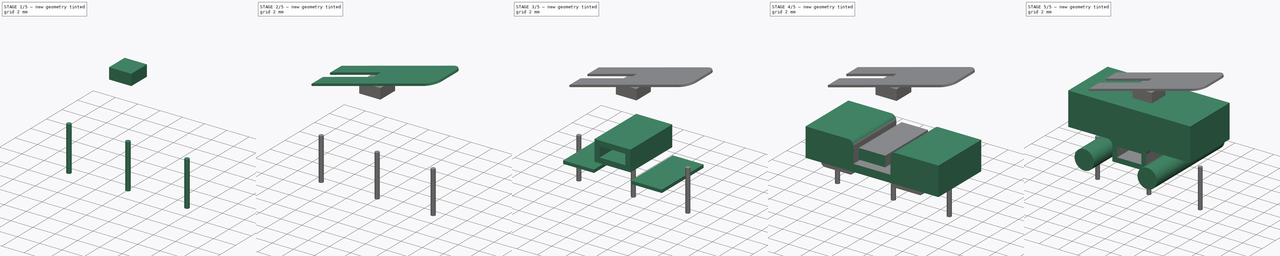
[diagram: build sequence overview — one tinted view per stage of 5, left to right]
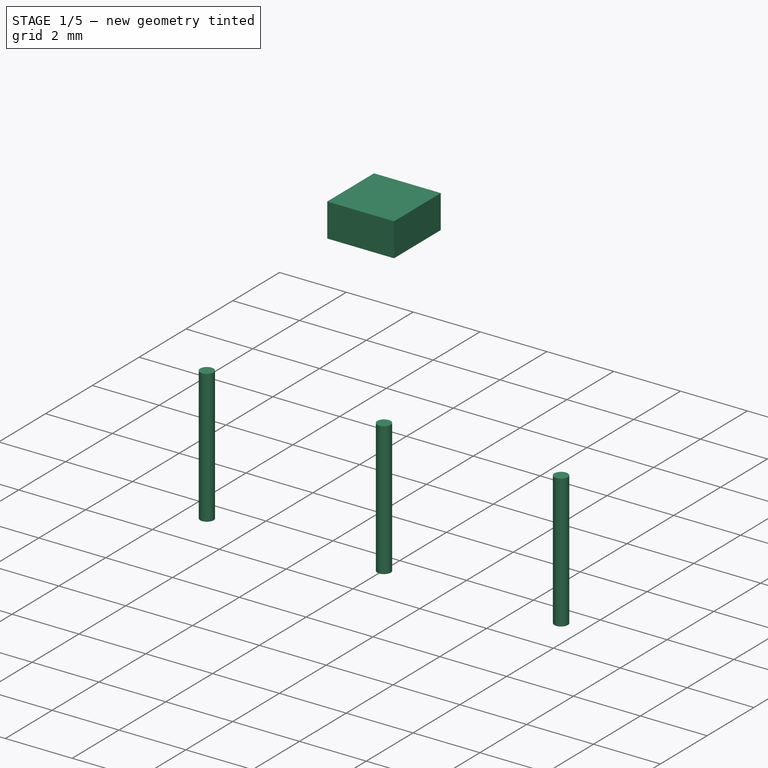
[diagram: stage 1 of 5 — iso view after this stage's code; geometry added in this stage tinted green]
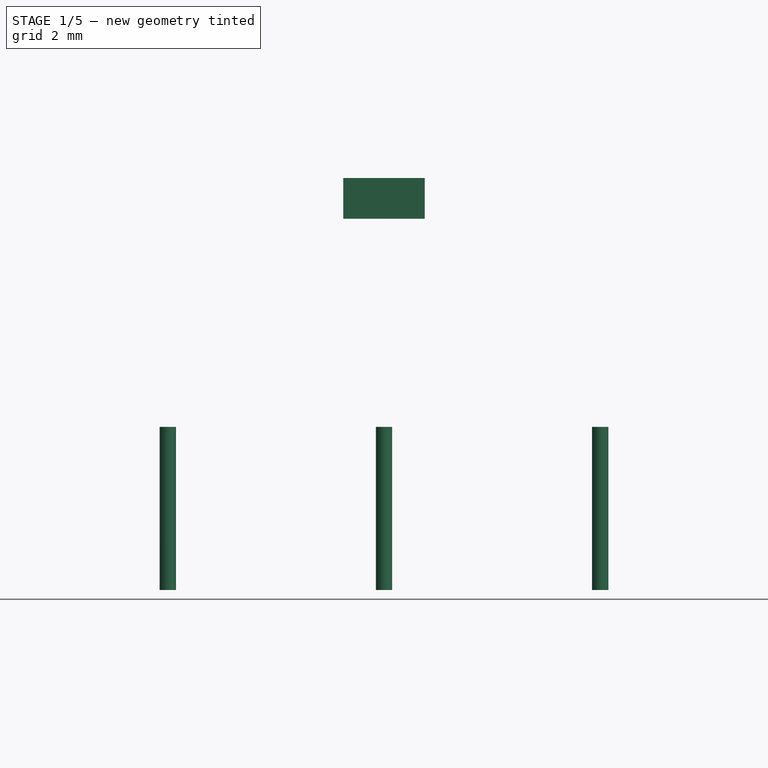
[diagram: stage 1 of 5 — front view after this stage's code; geometry added in this stage tinted green]
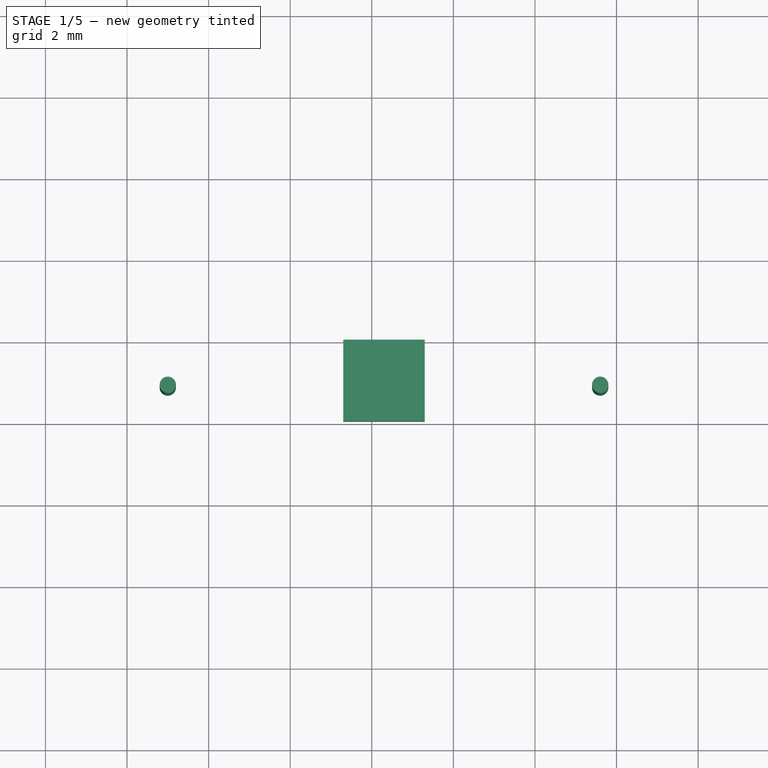
[diagram: stage 1 of 5 — top view after this stage's code; geometry added in this stage tinted green]
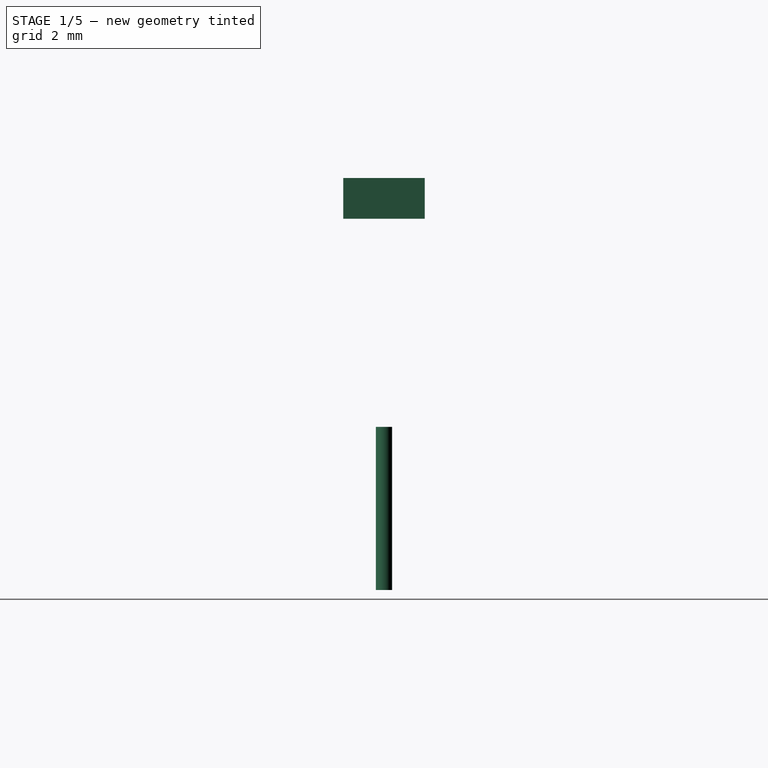
[diagram: stage 1 of 5 — right view after this stage's code; geometry added in this stage tinted green]
FCSTD DOCUMENT  (FreeCAD 0.14R3702 (Git))
Label: endstop12x6x5
License: CC-BY 3.0
LicenseURL: http://creativecommons.org/licenses/by/3.0/
objects: Part::Box×8, Part::Cylinder×5, Part::Cut×3, Part::Fillet×3, Part::Feature×2, Part::MultiFuse×1, Part::Chamfer×1, Sketcher::SketchObject×1, PartDesign::Pocket×1, App::DocumentObjectGroup×1
note: 26 computed .brp shape members not serialized (recipe doc carries the construction recipe); baked Part::Feature solids carry a one-line shape summary decoded from their .brp

FEATURE [Part::Box] Box007  label="Cubo007"
  Height = 1
  Length = 2
  Placement = pos=(5.3,1.9,6.1) rot=(0,0,1;0rad)
  Width = 2
FEATURE [Part::Cylinder] Cylinder002  label="GND"
  Angle = 360
  Height = 4
  Placement = pos=(1,2.9,-3) rot=(0,0,1;0rad)
  Radius = 0.2
FEATURE [Part::Cylinder] Cylinder003  label="NC"
  Angle = 360
  Height = 4
  Placement = pos=(6.3,2.9,-3) rot=(0,0,1;0rad)
  Radius = 0.2
FEATURE [Part::Cylinder] Cylinder004  label="NO"
  Angle = 360
  Height = 4
  Placement = pos=(11.6,2.9,-3) rot=(0,0,1;0rad)
  Radius = 0.2
FEATURE [App::DocumentObjectGroup] Grupo  label="PiezaTerminada"
  Group = -> [Fillet001,Cut002,Cut003,Box007,Cylinder002,Cylinder003,Cylinder004]
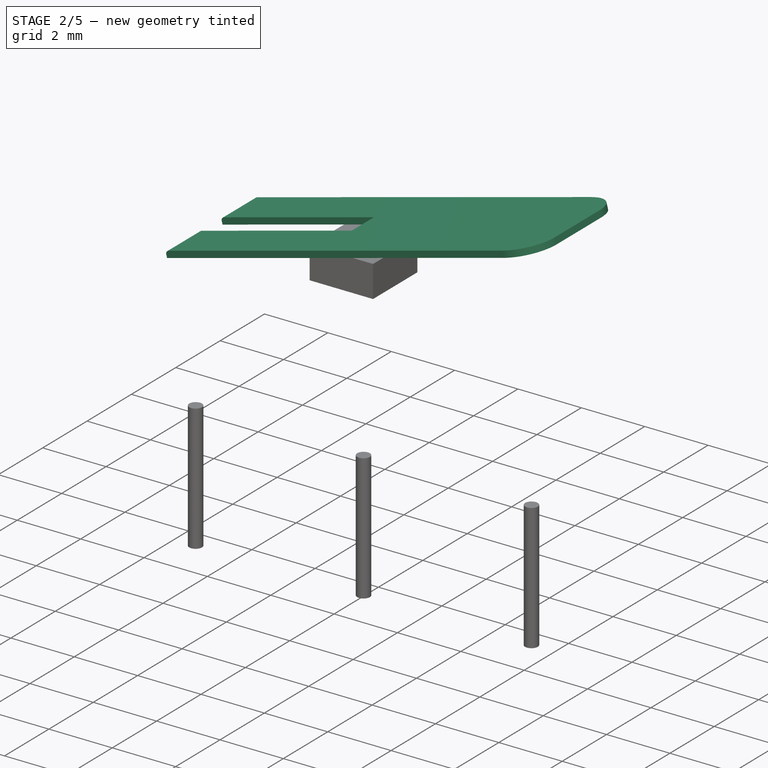
[diagram: stage 2 of 5 — iso view after this stage's code; geometry added in this stage tinted green]
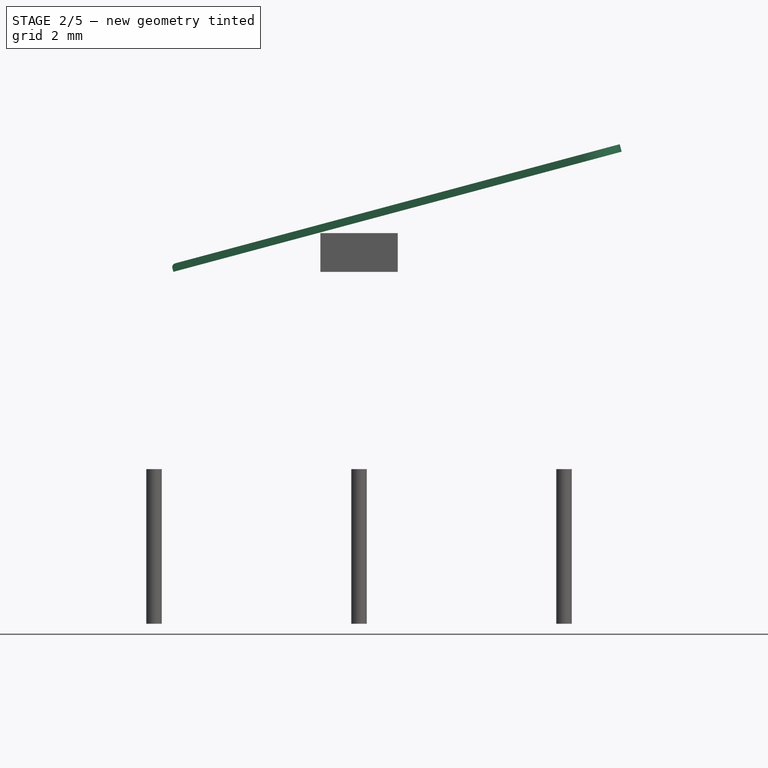
[diagram: stage 2 of 5 — front view after this stage's code; geometry added in this stage tinted green]
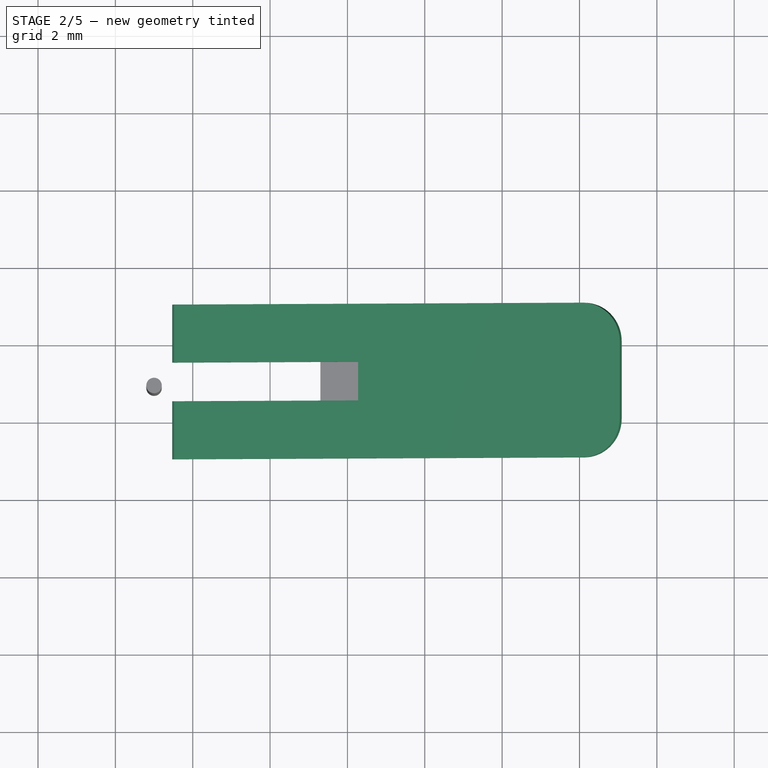
[diagram: stage 2 of 5 — top view after this stage's code; geometry added in this stage tinted green]
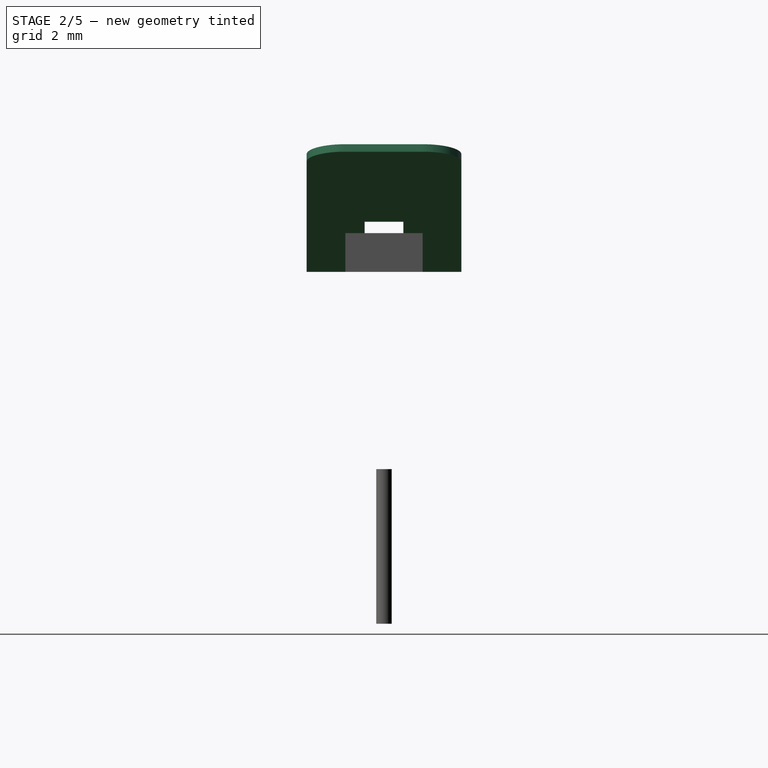
[diagram: stage 2 of 5 — right view after this stage's code; geometry added in this stage tinted green]
FEATURE [Part::Feature] Cut002  label="ParteAlta"
  shape: bbox 12.6 x 5.8 x 5.4 mm, 16 faces (baked)
FEATURE [Part::Box] Box005  label="Cubo005"
  Height = 0.2
  Length = 12
  Width = 4
FEATURE [Part::Fillet] Fillet002
  Base = -> Box005
  Edges = 2 edges r=1: [Edge5,Edge7]
FEATURE [Part::Fillet] Fillet003
  Base = -> Fillet002
  Edges = 1 edges r=0.1: [Edge7]
FEATURE [Part::Box] Box006  label="Cubo006"
  Height = 0.2
  Length = 5
  Placement = pos=(0,1.5,0) rot=(0,0,1;0rad)
  Width = 1
FEATURE [Part::Cut] Cut003  label="Pletina"
  Base = -> Fillet003
  Placement = pos=(1.5,0.9,6.1) rot=(0,-1,0;0.261799rad)
  Tool = -> Box006
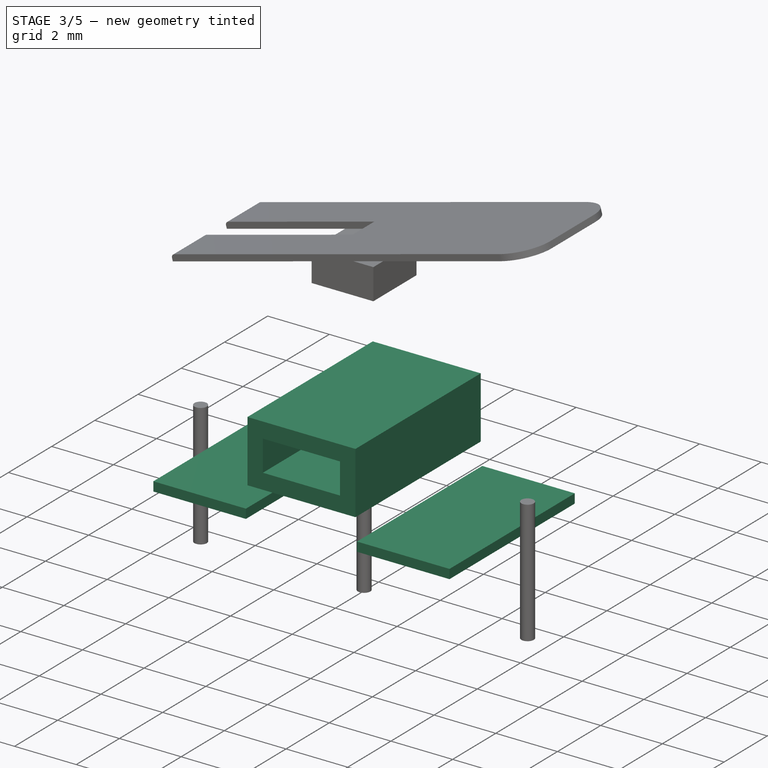
[diagram: stage 3 of 5 — iso view after this stage's code; geometry added in this stage tinted green]
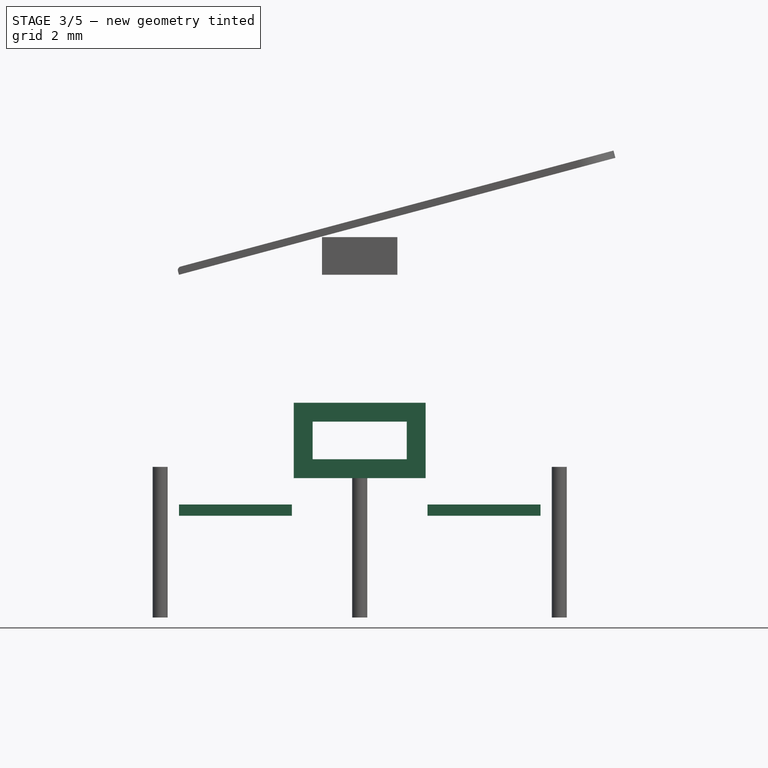
[diagram: stage 3 of 5 — front view after this stage's code; geometry added in this stage tinted green]
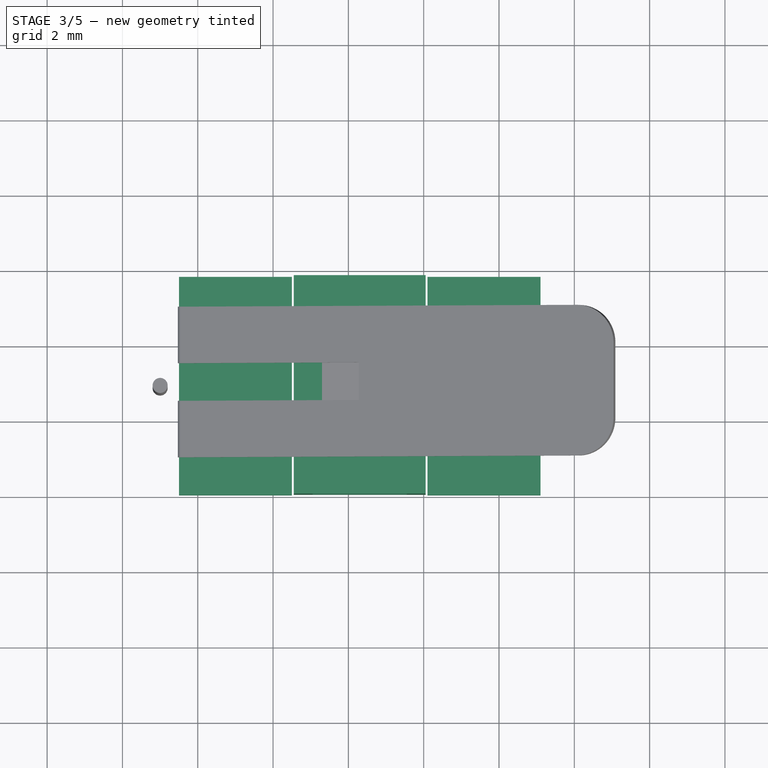
[diagram: stage 3 of 5 — top view after this stage's code; geometry added in this stage tinted green]
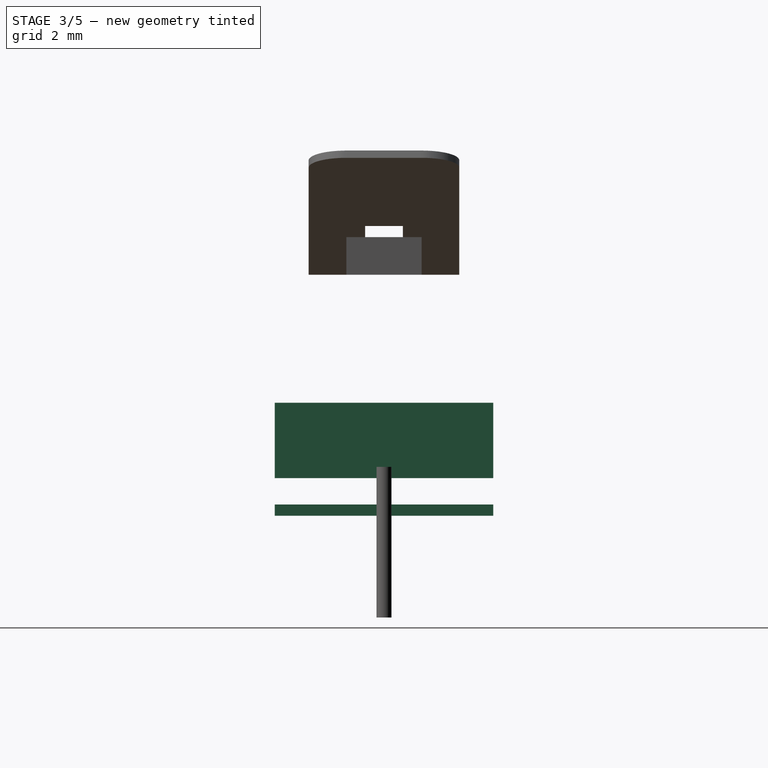
[diagram: stage 3 of 5 — right view after this stage's code; geometry added in this stage tinted green]
FEATURE [Part::Box] Box001  label="Cubo001"
  Height = 0.3
  Length = 3
  Placement = pos=(8.1,0,-0.3) rot=(0,0,1;0rad)
  Width = 5.8
FEATURE [Part::Box] Box002  label="Cubo002"
  Height = 0.3
  Length = 3
  Placement = pos=(1.5,0,-0.3) rot=(0,0,1;0rad)
  Width = 5.8
FEATURE [Part::Box] Box003  label="Cubo003"
  Height = 2
  Length = 3.5
  Placement = pos=(4.55,0,0.7) rot=(0,0,1;0rad)
  Width = 5.8
FEATURE [Sketcher::SketchObject] Sketch
  Placement = pos=(4.55,0,0.7) rot=(1,0,0;1.5708rad)
  Support = -> Box003 [Face3]
  sketch-geometry (4):
    g0: LineSegment StartX=0.5 StartY=0.5 StartZ=0 EndX=3 EndY=0.5 EndZ=0
    g1: LineSegment StartX=3 StartY=0.5 StartZ=0 EndX=3 EndY=1.5 EndZ=0
    g2: LineSegment StartX=3 StartY=1.5 StartZ=0 EndX=0.5 EndY=1.5 EndZ=0
    g3: LineSegment StartX=0.5 StartY=1.5 StartZ=0 EndX=0.5 EndY=0.5 EndZ=0
  constraints (12):
    c: Coincident(g0,g1)
    c: Coincident(g1,g2)
    c: Coincident(g2,g3)
    c: Coincident(g3,g0)
    c: Horizontal(g0)
    c: Horizontal(g2)
    c: Vertical(g1)
    c: Vertical(g3)
    c: DistanceX(g0) = 2.5
    c: DistanceY(g1) = 1
    c: DistanceX(g-1,g0) = 0.5
    c: DistanceY(g-1,g0) = 0.5
FEATURE [PartDesign::Pocket] Pocket
  Length = 5
  Placement = pos=(4.55,0,0.7) rot=(0,0,1;0rad)
  Sketch = -> Sketch
  Type = 1
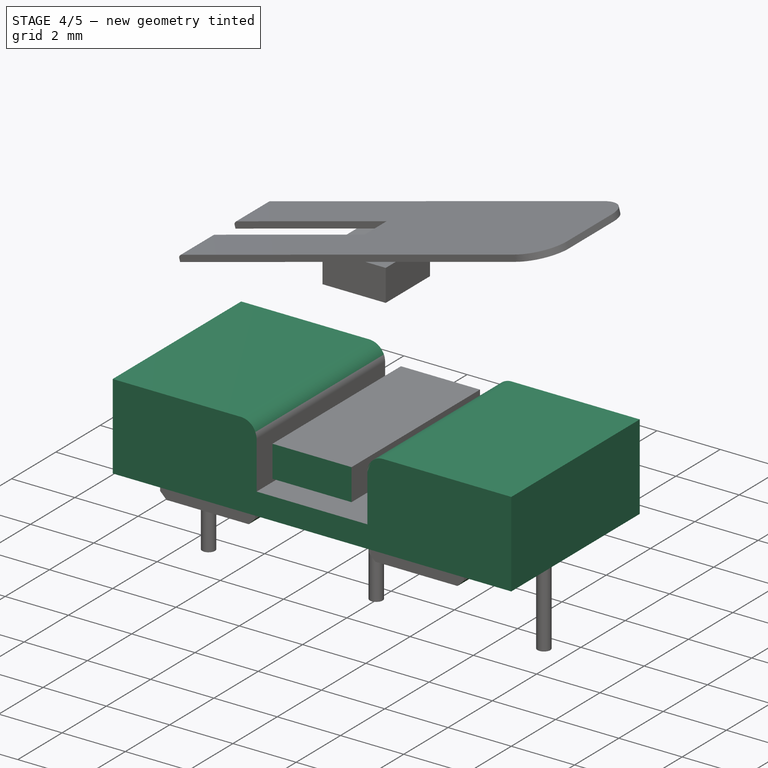
[diagram: stage 4 of 5 — iso view after this stage's code; geometry added in this stage tinted green]
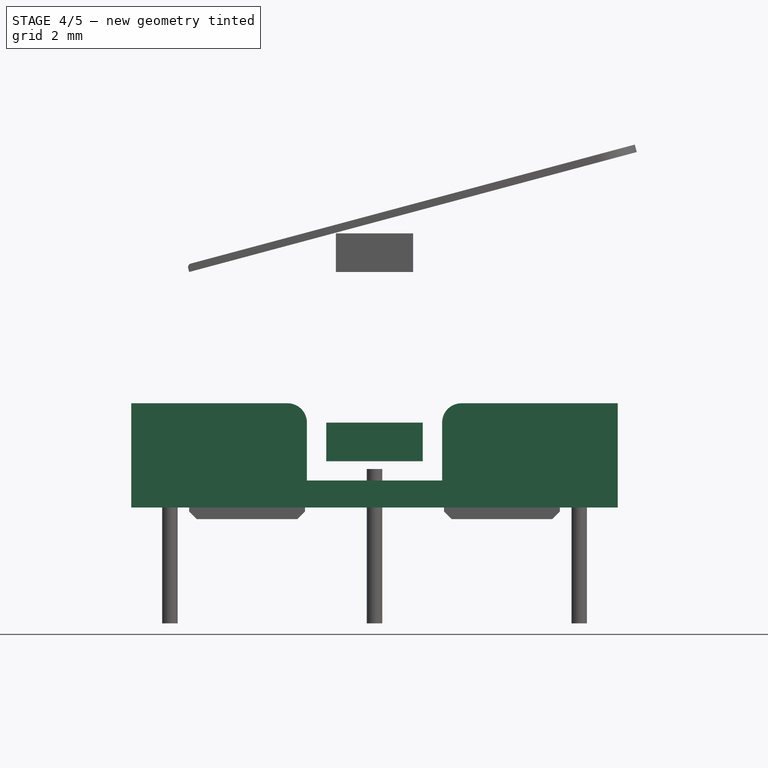
[diagram: stage 4 of 5 — front view after this stage's code; geometry added in this stage tinted green]
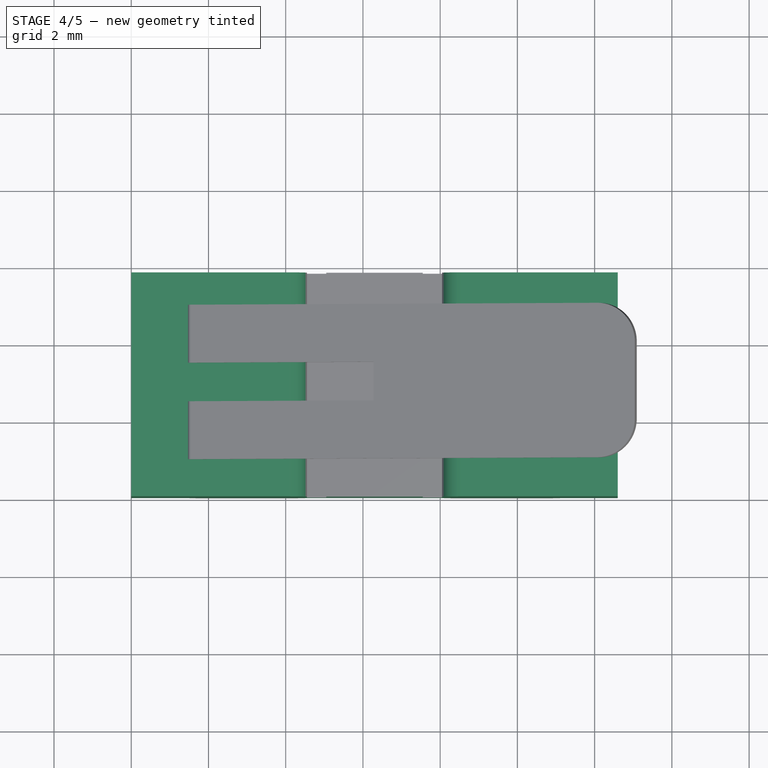
[diagram: stage 4 of 5 — top view after this stage's code; geometry added in this stage tinted green]
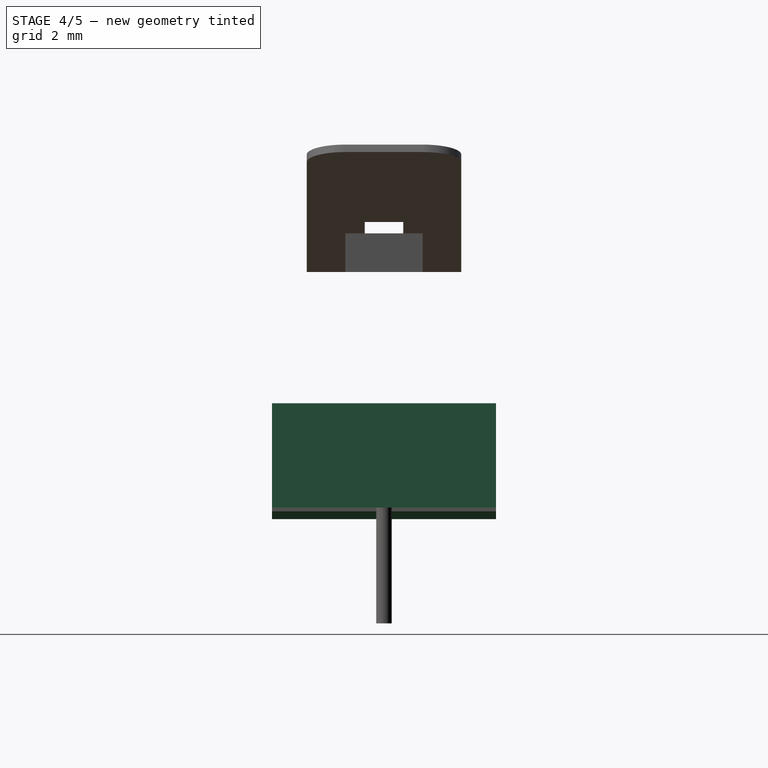
[diagram: stage 4 of 5 — right view after this stage's code; geometry added in this stage tinted green]
FEATURE [Part::Box] Box  label="Cubo"
  Height = 2.7
  Length = 12.6
  Width = 5.8
FEATURE [Part::MultiFuse] Fusion
  Shapes = -> [Box,Box001,Box002]
FEATURE [Part::Chamfer] Chamfer
  Base = -> Fusion
  Edges = 4 edges r=0.2: [Edge1,Edge3,Edge37,Edge40]
FEATURE [Part::Cut] Cut
  Base = -> Chamfer
  Tool = -> Pocket
FEATURE [Part::Feature] Fillet001  label="ParteBaja"
  shape: bbox 12.6 x 5.8 x 3 mm, 32 faces, 2 solids (baked)
FEATURE [Part::Fillet] Fillet
  Base = -> Cut
  Edges = 2 edges r=0.5: [Edge51,Edge54]
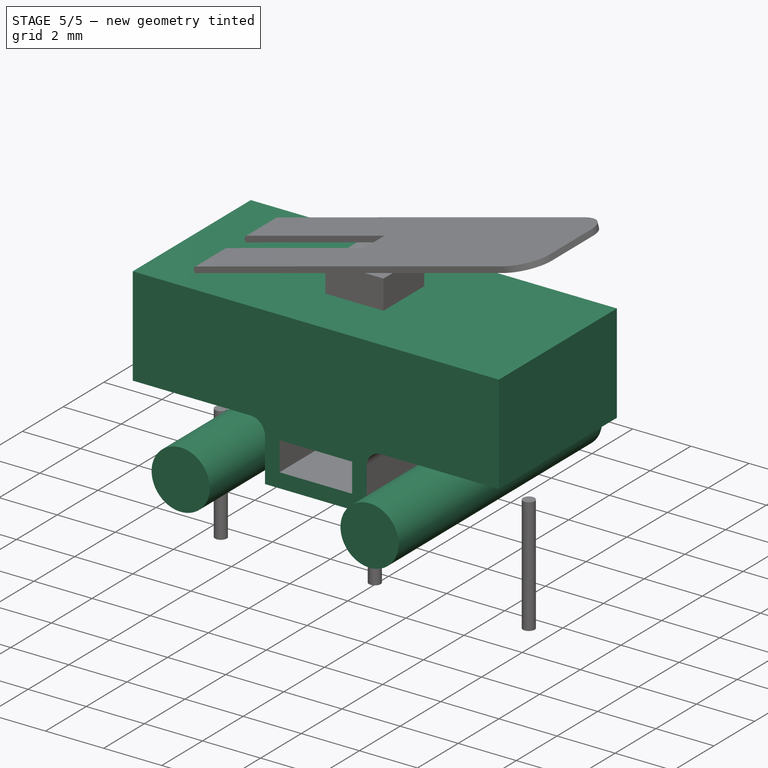
[diagram: stage 5 of 5 — iso view after this stage's code; geometry added in this stage tinted green]
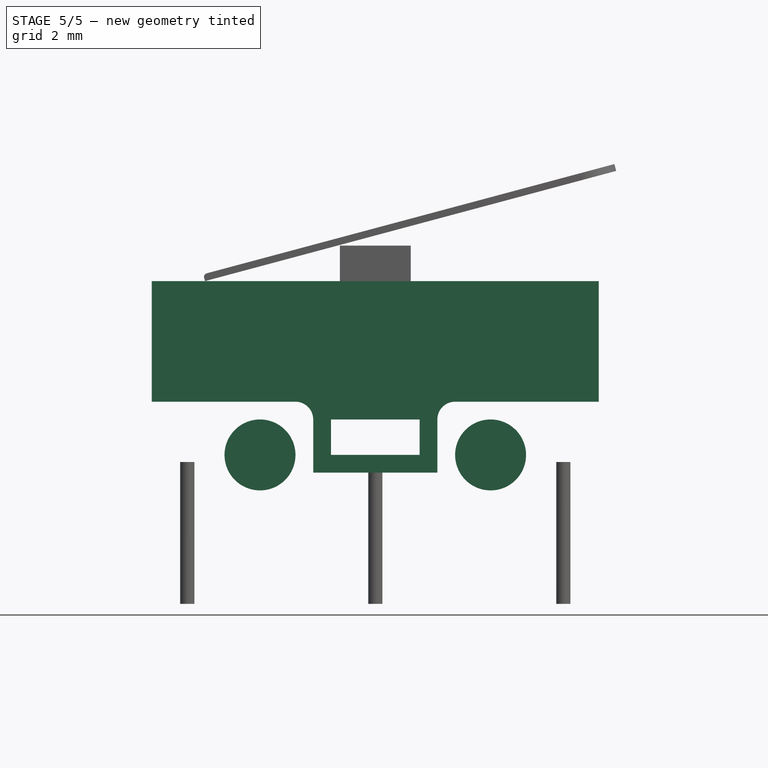
[diagram: stage 5 of 5 — front view after this stage's code; geometry added in this stage tinted green]
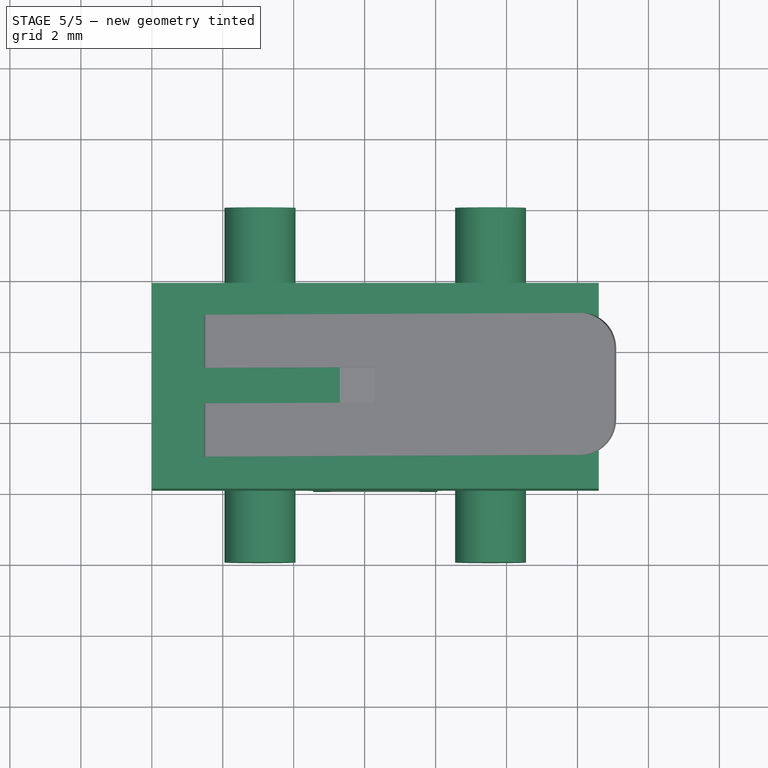
[diagram: stage 5 of 5 — top view after this stage's code; geometry added in this stage tinted green]
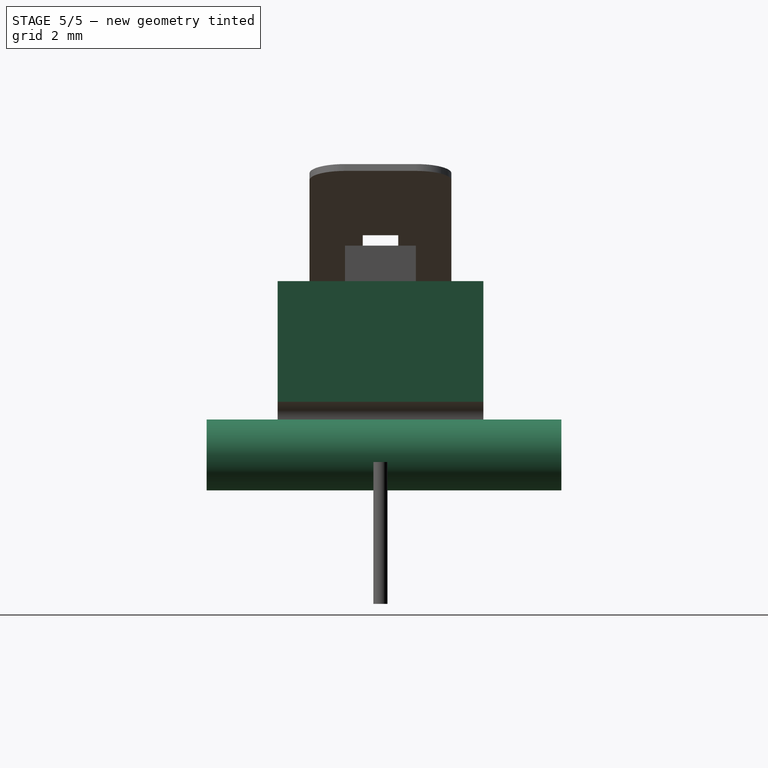
[diagram: stage 5 of 5 — right view after this stage's code; geometry added in this stage tinted green]
FEATURE [Part::Cylinder] Cylinder  label="Cilindro"
  Angle = 360
  Height = 10
  Placement = pos=(3.05,8,1.2) rot=(1,0,0;1.5708rad)
  Radius = 1
FEATURE [Part::Cylinder] Cylinder001  label="Cilindro001"
  Angle = 360
  Height = 10
  Placement = pos=(9.55,8,1.2) rot=(1,0,0;1.5708rad)
  Radius = 1
FEATURE [Part::Box] Box004  label="Cubo004"
  Height = 6.1
  Length = 12.6
  Width = 5.8
FEATURE [Part::Cut] Cut001
  Base = -> Box004
  Tool = -> Fillet
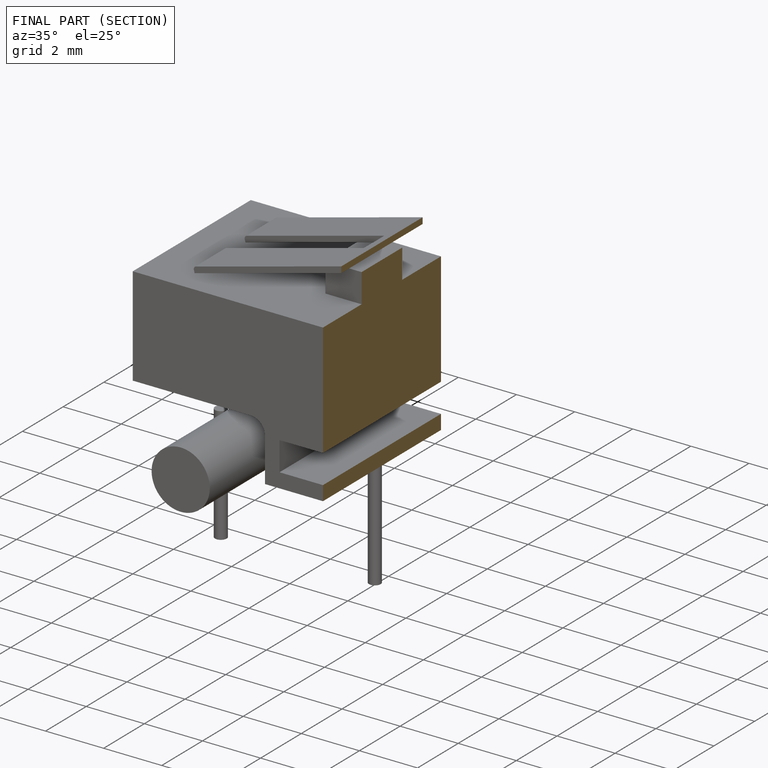
[diagram: finished part — half-section view (interior)]
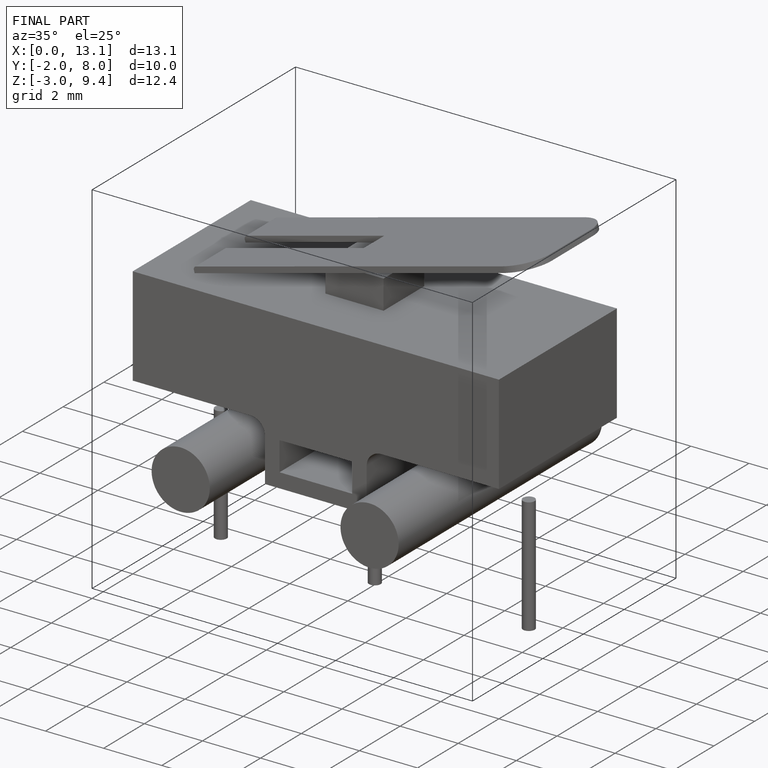
[diagram: finished part — iso view with bounding-box wireframe]
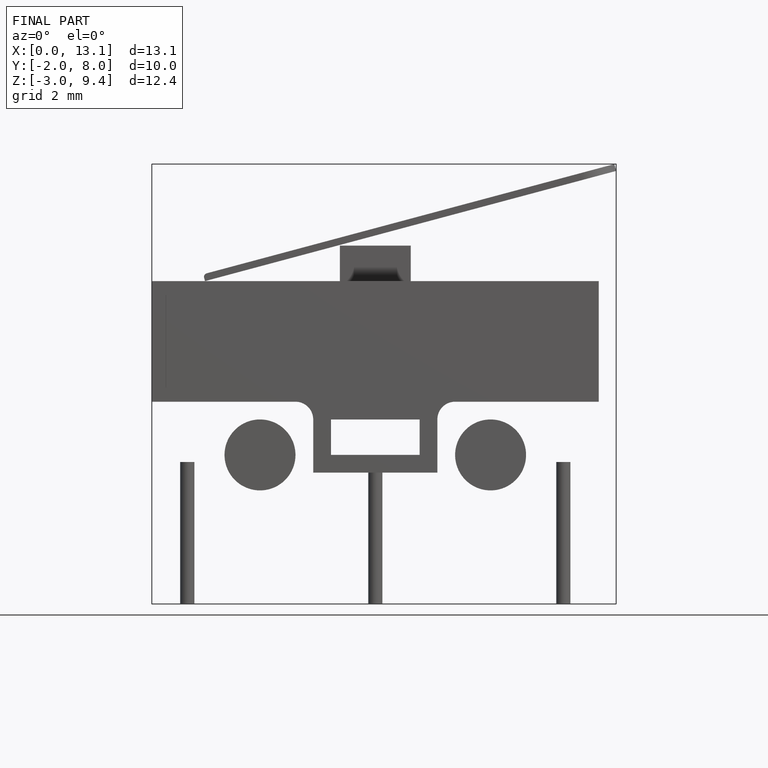
[diagram: finished part — front view with bounding-box wireframe]
